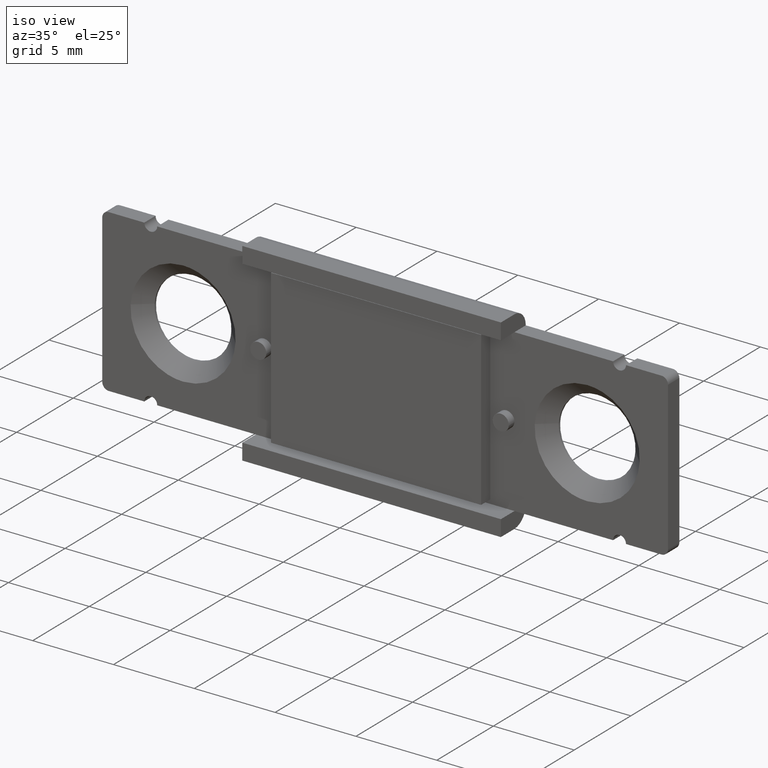
[diagram: clean part render]
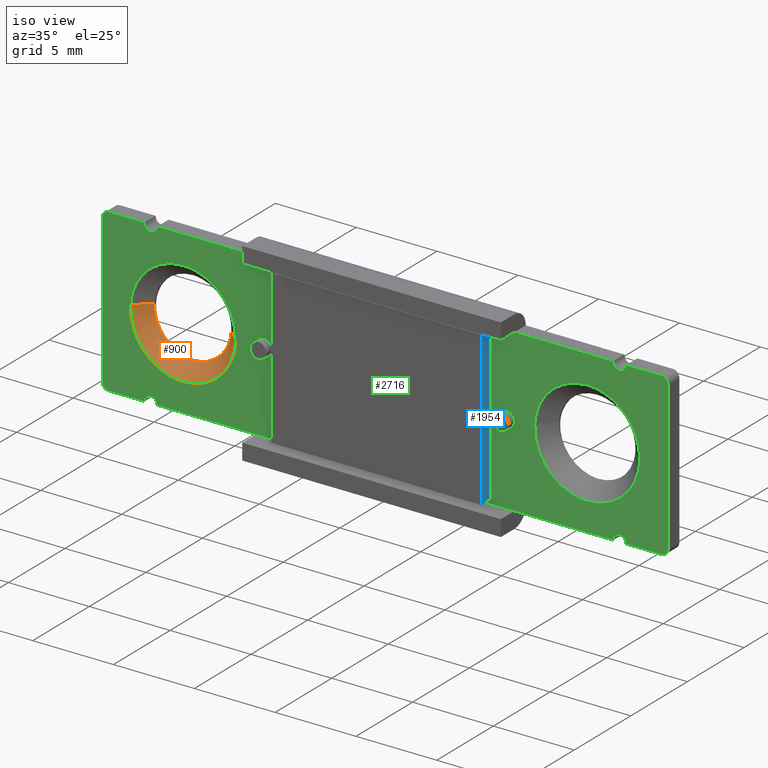
[diagram: same view with three faces highlighted in distinct colors, each labeled with its STEP entity id]
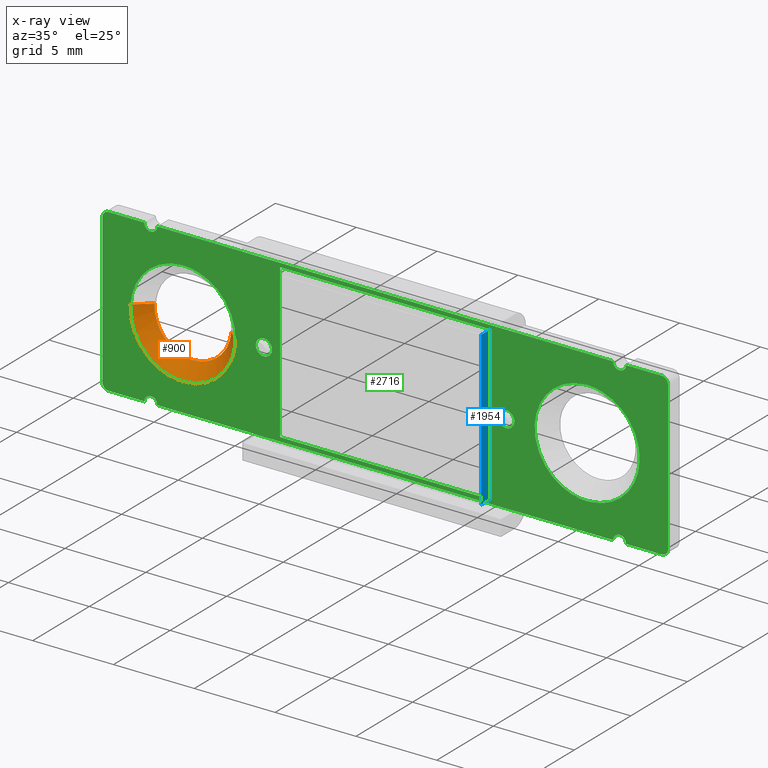
[diagram: x-ray of the same camera — body ghosted, the three highlighted faces saturated]
A machine part, iso view with three faces highlighted in distinct colors.
The next image is the same camera in x-ray (body ghosted, the three faces saturated) — at least one of them is partly hidden behind the body in this view.
Their STEP definitions:

[orange] entity #900 — the highlighted face is a freeform B-spline surface patch.
#617=CARTESIAN_POINT('',(-10.129429353745820,-0.125000000007742,-0.144990281424830));
#618=VERTEX_POINT('',#617);
#641=CARTESIAN_POINT('',(-14.870569646253820,-0.125000000007742,0.144990281424830));
#642=VERTEX_POINT('',#641);
#746=CARTESIAN_POINT('',(-12.499999499999820,-0.125000000000014,-2.375000000000000));
#747=VERTEX_POINT('',#746);
#748=CARTESIAN_POINT('',(-14.870569646253815,-0.125000000007741,0.144990281424830));
#749=CARTESIAN_POINT('',(-14.874999500005382,-0.125000000007630,0.072562812834884));
#750=CARTESIAN_POINT('',(-14.874999500005300,-0.125000000007512,-2.821161E-011));
#751=CARTESIAN_POINT('',(-14.874999500002483,-0.125000000003649,-2.375000000013675));
#752=CARTESIAN_POINT('',(-12.499999499999820,-0.125000000000014,-2.375000000000000));
#760=(BOUNDED_CURVE()B_SPLINE_CURVE(2,(#748,#749,#750,#751,#752),.UNSPECIFIED.,.F.,.U.)B_SPLINE_CURVE_WITH_KNOTS((3,2,3),(0.739332962237702,0.750000000000000,1.0),.UNSPECIFIED.)CURVE()GEOMETRIC_REPRESENTATION_ITEM()RATIONAL_B_SPLINE_CURVE((0.976072041664057,0.987502787898383,1.0,0.707106781186548,1.0))REPRESENTATION_ITEM(''));
#761=EDGE_CURVE('',#642,#747,#760,.T.);
#763=CARTESIAN_POINT('',(-12.499999499999820,-0.125000000000014,-2.375000000000000));
#764=CARTESIAN_POINT('',(-10.265822591151318,-0.125000000003878,-2.374999999985463));
#765=CARTESIAN_POINT('',(-10.129429353745824,-0.125000000007742,-0.144990281424830));
#773=(BOUNDED_CURVE()B_SPLINE_CURVE(2,(#763,#764,#765),.UNSPECIFIED.,.F.,.U.)B_SPLINE_CURVE_WITH_KNOTS((3,3),(0.0,0.239332962237702),.UNSPECIFIED.)CURVE()GEOMETRIC_REPRESENTATION_ITEM()RATIONAL_B_SPLINE_CURVE((1.0,0.719603993288164,0.976072041664057))REPRESENTATION_ITEM(''));
#774=EDGE_CURVE('',#747,#618,#773,.T.);
#798=CARTESIAN_POINT('',(-9.256061405124928,-1.000000000007108,-0.198407753541916));
#799=VERTEX_POINT('',#798);
#800=CARTESIAN_POINT('',(-10.129429353745820,-0.125000000007742,-0.144990281424830));
#801=CARTESIAN_POINT('',(-9.256061405124928,-1.000000000007108,-0.198407753541916));
#802=QUASI_UNIFORM_CURVE('',1,(#800,#801),.UNSPECIFIED.,.F.,.U.);
#803=EDGE_CURVE('',#618,#799,#802,.T.);
#822=CARTESIAN_POINT('',(-15.743937594874710,-1.000000000007108,0.198407753541916));
#823=VERTEX_POINT('',#822);
#837=CARTESIAN_POINT('',(-14.870569646253820,-0.125000000007742,0.144990281424830));
#838=CARTESIAN_POINT('',(-15.743937594874710,-1.000000000007108,0.198407753541916));
#839=QUASI_UNIFORM_CURVE('',1,(#837,#838),.UNSPECIFIED.,.F.,.U.);
#840=EDGE_CURVE('',#642,#823,#839,.T.);
#846=CARTESIAN_POINT('',(-14.848735447536271,-0.103125000000014,0.143654844592960));
#847=CARTESIAN_POINT('',(-14.992390292129240,-0.103125000000014,-2.205081102943495));
#848=CARTESIAN_POINT('',(-12.643654344592781,-0.103125000000014,-2.348735947536455));
#849=CARTESIAN_POINT('',(-10.294918397056326,-0.103125000000014,-2.492390792129414));
#850=CARTESIAN_POINT('',(-10.151263552463369,-0.103125000000014,-0.143654844592960));
#851=CARTESIAN_POINT('',(-15.766317648554249,-1.022421875000015,0.199776576210668));
#852=CARTESIAN_POINT('',(-15.966094224764921,-1.022421875000015,-3.066541572343765));
#853=CARTESIAN_POINT('',(-12.699776076210490,-1.022421875000015,-3.266318148554433));
#854=CARTESIAN_POINT('',(-9.433457927656056,-1.022421875000015,-3.466094724765101));
#855=CARTESIAN_POINT('',(-9.233681351445387,-1.022421875000015,-0.199776576210668));
#863=(BOUNDED_SURFACE()B_SPLINE_SURFACE(2,1,((#846,#851),(#847,#852),(#848,#853),(#849,#854),(#850,#855)),.UNSPECIFIED.,.F.,.F.,.U.)B_SPLINE_SURFACE_WITH_KNOTS((3,2,3),(2,2),(0.0,5.421926089725573,10.843852179451151),(0.0,1.0),.UNSPECIFIED.)GEOMETRIC_REPRESENTATION_ITEM()RATIONAL_B_SPLINE_SURFACE(((1.0,1.0),(0.707106781186548,0.707106781186548),(1.0,1.0),(0.707106781186548,0.707106781186548),(1.0,1.0)))REPRESENTATION_ITEM('')SURFACE());
#864=ORIENTED_EDGE('',*,*,#774,.F.);
#865=ORIENTED_EDGE('',*,*,#761,.F.);
#866=ORIENTED_EDGE('',*,*,#840,.T.);
#867=CARTESIAN_POINT('',(-12.499999499999820,-1.000000000000014,-3.250000000000000));
#868=VERTEX_POINT('',#867);
#869=CARTESIAN_POINT('',(-15.743937594874712,-1.000000000007108,0.198407753541916));
#870=CARTESIAN_POINT('',(-15.749999500006798,-1.000000000007006,0.099296480747514));
#871=CARTESIAN_POINT('',(-15.749999500006689,-1.000000000006897,4.206081E-013));
#872=CARTESIAN_POINT('',(-15.749999500003151,-1.000000000003351,-3.249999999999796));
#873=CARTESIAN_POINT('',(-12.499999499999820,-1.000000000000014,-3.250000000000000));
#881=(BOUNDED_CURVE()B_SPLINE_CURVE(2,(#869,#870,#871,#872,#873),.UNSPECIFIED.,.F.,.U.)B_SPLINE_CURVE_WITH_KNOTS((3,2,3),(0.739332962239139,0.750000000000000,1.0),.UNSPECIFIED.)CURVE()GEOMETRIC_REPRESENTATION_ITEM()RATIONAL_B_SPLINE_CURVE((0.976072041667137,0.987502787900067,1.0,0.707106781186547,1.0))REPRESENTATION_ITEM(''));
#882=EDGE_CURVE('',#823,#868,#881,.T.);
#883=ORIENTED_EDGE('',*,*,#882,.T.);
#884=CARTESIAN_POINT('',(-12.499999499999820,-1.000000000000014,-3.250000000000000));
#885=CARTESIAN_POINT('',(-9.442704782603004,-1.000000000003561,-3.250000000000216));
#886=CARTESIAN_POINT('',(-9.256061405124928,-1.000000000007108,-0.198407753541916));
#894=(BOUNDED_CURVE()B_SPLINE_CURVE(2,(#884,#885,#886),.UNSPECIFIED.,.F.,.U.)B_SPLINE_CURVE_WITH_KNOTS((3,3),(0.0,0.239332962239139),.UNSPECIFIED.)CURVE()GEOMETRIC_REPRESENTATION_ITEM()RATIONAL_B_SPLINE_CURVE((1.0,0.719603993286481,0.976072041667137))REPRESENTATION_ITEM(''));
#895=EDGE_CURVE('',#868,#799,#894,.T.);
#896=ORIENTED_EDGE('',*,*,#895,.T.);
#897=ORIENTED_EDGE('',*,*,#803,.F.);
#898=EDGE_LOOP('',(#864,#865,#866,#883,#896,#897));
#899=FACE_OUTER_BOUND('',#898,.T.);
#900=ADVANCED_FACE('',(#899),#863,.F.);

[blue] entity #1954 — the highlighted face is a freeform B-spline surface patch.
#1836=CARTESIAN_POINT('',(6.500000500000170,-1.800000000000025,-4.749999813229710));
#1837=VERTEX_POINT('',#1836);
#1838=CARTESIAN_POINT('',(6.500000500000170,-1.800000000000025,4.750000186770421));
#1839=VERTEX_POINT('',#1838);
#1840=CARTESIAN_POINT('',(6.500000500000170,-1.800000000000025,-4.749999813229710));
#1841=CARTESIAN_POINT('',(6.500000500000170,-1.800000000000025,4.750000186770421));
#1842=QUASI_UNIFORM_CURVE('',1,(#1840,#1841),.UNSPECIFIED.,.F.,.U.);
#1843=EDGE_CURVE('',#1837,#1839,#1842,.T.);
#1874=CARTESIAN_POINT('',(6.500000500000170,-1.000000000000112,-4.749999813229710));
#1875=VERTEX_POINT('',#1874);
#1881=CARTESIAN_POINT('',(6.500000500000170,-1.800000000000025,-4.749999813229710));
#1882=CARTESIAN_POINT('',(6.500000500000170,-1.000000000000112,-4.749999813229710));
#1883=QUASI_UNIFORM_CURVE('',1,(#1881,#1882),.UNSPECIFIED.,.F.,.U.);
#1884=EDGE_CURVE('',#1837,#1875,#1883,.T.);
#1922=CARTESIAN_POINT('',(6.500000500000170,-1.000000000000112,4.750000186770421));
#1923=VERTEX_POINT('',#1922);
#1931=CARTESIAN_POINT('',(6.500000500000170,-1.800000000000025,4.750000186770421));
#1932=CARTESIAN_POINT('',(6.500000500000170,-1.000000000000112,4.750000186770421));
#1933=QUASI_UNIFORM_CURVE('',1,(#1931,#1932),.UNSPECIFIED.,.F.,.U.);
#1934=EDGE_CURVE('',#1839,#1923,#1933,.T.);
#1939=CARTESIAN_POINT('',(6.500000500000170,-1.839959998449466,-5.224524794816873));
#1940=CARTESIAN_POINT('',(6.500000500000170,-1.839959998449466,5.224525423167441));
#1941=CARTESIAN_POINT('',(6.500000500000170,-0.960039980093000,-5.224524794816873));
#1942=CARTESIAN_POINT('',(6.500000500000170,-0.960039980093000,5.224525423167441));
#1943=B_SPLINE_SURFACE_WITH_KNOTS('',1,1,((#1939,#1941),(#1940,#1942)),.UNSPECIFIED.,.F.,.F.,.U.,(2,2),(2,2),(0.0,10.449050217984320),(0.041708334948495,0.958291687403247),.UNSPECIFIED.);
#1944=CARTESIAN_POINT('',(6.500000500000170,-1.000000000000112,-4.749999813229710));
#1945=CARTESIAN_POINT('',(6.500000500000170,-1.000000000000112,4.750000186770421));
#1946=QUASI_UNIFORM_CURVE('',1,(#1944,#1945),.UNSPECIFIED.,.F.,.U.);
#1947=EDGE_CURVE('',#1875,#1923,#1946,.T.);
#1948=ORIENTED_EDGE('',*,*,#1947,.T.);
#1949=ORIENTED_EDGE('',*,*,#1934,.F.);
#1950=ORIENTED_EDGE('',*,*,#1843,.F.);
#1951=ORIENTED_EDGE('',*,*,#1884,.T.);
#1952=EDGE_LOOP('',(#1948,#1949,#1950,#1951));
#1953=FACE_OUTER_BOUND('',#1952,.T.);
#1954=ADVANCED_FACE('',(#1953),#1943,.F.);

[green] entity #2716 — the highlighted face is a freeform B-spline surface patch.
#494=CARTESIAN_POINT('',(15.743937594874950,-1.000000000007108,-0.198407753541916));
#495=VERTEX_POINT('',#494);
#501=CARTESIAN_POINT('',(12.499999500000060,-1.000000000000014,3.250000000000000));
#502=VERTEX_POINT('',#501);
#503=CARTESIAN_POINT('',(15.743937594874959,-1.000000000007108,-0.198407753541916));
#504=CARTESIAN_POINT('',(15.749999500007041,-1.000000000007006,-0.099296480747514));
#505=CARTESIAN_POINT('',(15.749999500006931,-1.000000000006898,-4.201772E-013));
#506=CARTESIAN_POINT('',(15.749999500003391,-1.000000000003351,3.249999999999798));
#507=CARTESIAN_POINT('',(12.499999500000060,-1.000000000000014,3.250000000000000));
#515=(BOUNDED_CURVE()B_SPLINE_CURVE(2,(#503,#504,#505,#506,#507),.UNSPECIFIED.,.F.,.U.)B_SPLINE_CURVE_WITH_KNOTS((3,2,3),(0.239332962239139,0.250000000000000,0.500000000000000),.UNSPECIFIED.)CURVE()GEOMETRIC_REPRESENTATION_ITEM()RATIONAL_B_SPLINE_CURVE((0.976072041667137,0.987502787900067,1.0,0.707106781186547,1.0))REPRESENTATION_ITEM(''));
#516=EDGE_CURVE('',#495,#502,#515,.T.);
#518=CARTESIAN_POINT('',(9.256061405125166,-1.000000000007108,0.198407753541915));
#519=VERTEX_POINT('',#518);
#520=CARTESIAN_POINT('',(12.499999500000060,-1.000000000000014,3.250000000000000));
#521=CARTESIAN_POINT('',(9.442704782603242,-1.000000000003561,3.250000000000216));
#522=CARTESIAN_POINT('',(9.256061405125166,-1.000000000007108,0.198407753541915));
#530=(BOUNDED_CURVE()B_SPLINE_CURVE(2,(#520,#521,#522),.UNSPECIFIED.,.F.,.U.)B_SPLINE_CURVE_WITH_KNOTS((3,3),(0.500000000000000,0.739332962239139),.UNSPECIFIED.)CURVE()GEOMETRIC_REPRESENTATION_ITEM()RATIONAL_B_SPLINE_CURVE((1.0,0.719603993286481,0.976072041667137))REPRESENTATION_ITEM(''));
#531=EDGE_CURVE('',#502,#519,#530,.T.);
#563=CARTESIAN_POINT('',(12.499999500000060,-1.000000000000014,-3.250000000000000));
#564=VERTEX_POINT('',#563);
#565=CARTESIAN_POINT('',(9.256061405125166,-1.000000000007108,0.198407753541915));
#566=CARTESIAN_POINT('',(9.249999499993082,-1.000000000007006,0.099296480747513));
#567=CARTESIAN_POINT('',(9.249999499993193,-1.000000000006897,4.195038E-013));
#568=CARTESIAN_POINT('',(9.249999499996731,-1.000000000003351,-3.249999999999798));
#569=CARTESIAN_POINT('',(12.499999500000060,-1.000000000000014,-3.250000000000000));
#577=(BOUNDED_CURVE()B_SPLINE_CURVE(2,(#565,#566,#567,#568,#569),.UNSPECIFIED.,.F.,.U.)B_SPLINE_CURVE_WITH_KNOTS((3,2,3),(0.739332962239139,0.750000000000000,1.0),.UNSPECIFIED.)CURVE()GEOMETRIC_REPRESENTATION_ITEM()RATIONAL_B_SPLINE_CURVE((0.976072041667137,0.987502787900067,1.0,0.707106781186547,1.0))REPRESENTATION_ITEM(''));
#578=EDGE_CURVE('',#519,#564,#577,.T.);
#580=CARTESIAN_POINT('',(12.499999500000060,-1.000000000000014,-3.250000000000000));
#581=CARTESIAN_POINT('',(15.557294217396880,-1.000000000003561,-3.250000000000216));
#582=CARTESIAN_POINT('',(15.743937594874959,-1.000000000007108,-0.198407753541916));
#590=(BOUNDED_CURVE()B_SPLINE_CURVE(2,(#580,#581,#582),.UNSPECIFIED.,.F.,.U.)B_SPLINE_CURVE_WITH_KNOTS((3,3),(0.0,0.239332962239139),.UNSPECIFIED.)CURVE()GEOMETRIC_REPRESENTATION_ITEM()RATIONAL_B_SPLINE_CURVE((1.0,0.719603993286481,0.976072041667137))REPRESENTATION_ITEM(''));
#591=EDGE_CURVE('',#564,#495,#590,.T.);
#798=CARTESIAN_POINT('',(-9.256061405124928,-1.000000000007108,-0.198407753541916));
#799=VERTEX_POINT('',#798);
#805=CARTESIAN_POINT('',(-12.499999499999820,-1.000000000000014,3.250000000000000));
#806=VERTEX_POINT('',#805);
#807=CARTESIAN_POINT('',(-9.256061405124928,-1.000000000007108,-0.198407753541916));
#808=CARTESIAN_POINT('',(-9.249999499992844,-1.000000000007006,-0.099296480747514));
#809=CARTESIAN_POINT('',(-9.249999499992953,-1.000000000006897,-4.201772E-013));
#810=CARTESIAN_POINT('',(-9.249999499996493,-1.000000000003351,3.249999999999798));
#811=CARTESIAN_POINT('',(-12.499999499999820,-1.000000000000014,3.250000000000000));
#819=(BOUNDED_CURVE()B_SPLINE_CURVE(2,(#807,#808,#809,#810,#811),.UNSPECIFIED.,.F.,.U.)B_SPLINE_CURVE_WITH_KNOTS((3,2,3),(0.239332962239139,0.250000000000000,0.500000000000000),.UNSPECIFIED.)CURVE()GEOMETRIC_REPRESENTATION_ITEM()RATIONAL_B_SPLINE_CURVE((0.976072041667137,0.987502787900067,1.0,0.707106781186547,1.0))REPRESENTATION_ITEM(''));
#820=EDGE_CURVE('',#799,#806,#819,.T.);
#822=CARTESIAN_POINT('',(-15.743937594874710,-1.000000000007108,0.198407753541916));
#823=VERTEX_POINT('',#822);
#824=CARTESIAN_POINT('',(-12.499999499999820,-1.000000000000014,3.250000000000000));
#825=CARTESIAN_POINT('',(-15.557294217396631,-1.000000000003561,3.250000000000216));
#826=CARTESIAN_POINT('',(-15.743937594874712,-1.000000000007108,0.198407753541916));
#834=(BOUNDED_CURVE()B_SPLINE_CURVE(2,(#824,#825,#826),.UNSPECIFIED.,.F.,.U.)B_SPLINE_CURVE_WITH_KNOTS((3,3),(0.500000000000000,0.739332962239139),.UNSPECIFIED.)CURVE()GEOMETRIC_REPRESENTATION_ITEM()RATIONAL_B_SPLINE_CURVE((1.0,0.719603993286481,0.976072041667137))REPRESENTATION_ITEM(''));
#835=EDGE_CURVE('',#806,#823,#834,.T.);
#867=CARTESIAN_POINT('',(-12.499999499999820,-1.000000000000014,-3.250000000000000));
#868=VERTEX_POINT('',#867);
#869=CARTESIAN_POINT('',(-15.743937594874712,-1.000000000007108,0.198407753541916));
#870=CARTESIAN_POINT('',(-15.749999500006798,-1.000000000007006,0.099296480747514));
#871=CARTESIAN_POINT('',(-15.749999500006689,-1.000000000006897,4.206081E-013));
#872=CARTESIAN_POINT('',(-15.749999500003151,-1.000000000003351,-3.249999999999796));
#873=CARTESIAN_POINT('',(-12.499999499999820,-1.000000000000014,-3.250000000000000));
#881=(BOUNDED_CURVE()B_SPLINE_CURVE(2,(#869,#870,#871,#872,#873),.UNSPECIFIED.,.F.,.U.)B_SPLINE_CURVE_WITH_KNOTS((3,2,3),(0.739332962239139,0.750000000000000,1.0),.UNSPECIFIED.)CURVE()GEOMETRIC_REPRESENTATION_ITEM()RATIONAL_B_SPLINE_CURVE((0.976072041667137,0.987502787900067,1.0,0.707106781186547,1.0))REPRESENTATION_ITEM(''));
#882=EDGE_CURVE('',#823,#868,#881,.T.);
#884=CARTESIAN_POINT('',(-12.499999499999820,-1.000000000000014,-3.250000000000000));
#885=CARTESIAN_POINT('',(-9.442704782603004,-1.000000000003561,-3.250000000000216));
#886=CARTESIAN_POINT('',(-9.256061405124928,-1.000000000007108,-0.198407753541916));
#894=(BOUNDED_CURVE()B_SPLINE_CURVE(2,(#884,#885,#886),.UNSPECIFIED.,.F.,.U.)B_SPLINE_CURVE_WITH_KNOTS((3,3),(0.0,0.239332962239139),.UNSPECIFIED.)CURVE()GEOMETRIC_REPRESENTATION_ITEM()RATIONAL_B_SPLINE_CURVE((1.0,0.719603993286481,0.976072041667137))REPRESENTATION_ITEM(''));
#895=EDGE_CURVE('',#868,#799,#894,.T.);
#1165=CARTESIAN_POINT('',(-7.998458666841378,-1.000000000000112,0.039229548183942));
#1166=VERTEX_POINT('',#1165);
#1172=CARTESIAN_POINT('',(-7.500000000000000,-1.000000000000112,-0.500000000000000));
#1173=VERTEX_POINT('',#1172);
#1174=CARTESIAN_POINT('',(-7.998458666841378,-1.000000000000112,0.039229548183941));
#1175=CARTESIAN_POINT('',(-8.0,-1.000000000000112,0.019645053664587));
#1176=CARTESIAN_POINT('',(-8.0,-1.000000000000112,0.0));
#1177=CARTESIAN_POINT('',(-8.0,-1.000000000000112,-0.500000000000000));
#1178=CARTESIAN_POINT('',(-7.500000000000000,-1.000000000000112,-0.500000000000000));
#1186=(BOUNDED_CURVE()B_SPLINE_CURVE(2,(#1174,#1175,#1176,#1177,#1178),.UNSPECIFIED.,.F.,.U.)B_SPLINE_CURVE_WITH_KNOTS((3,2,3),(0.736331300522709,0.750000000000000,1.0),.UNSPECIFIED.)CURVE()GEOMETRIC_REPRESENTATION_ITEM()RATIONAL_B_SPLINE_CURVE((0.969723355942134,0.983986122452410,1.0,0.707106781186548,1.0))REPRESENTATION_ITEM(''));
#1187=EDGE_CURVE('',#1166,#1173,#1186,.T.);
#1189=CARTESIAN_POINT('',(-7.001541333158621,-1.000000000000112,-0.039229548183942));
#1190=VERTEX_POINT('',#1189);
#1191=CARTESIAN_POINT('',(-7.500000000000000,-1.000000000000112,-0.500000000000000));
#1192=CARTESIAN_POINT('',(-7.037804754468549,-1.000000000000112,-0.500000000000000));
#1193=CARTESIAN_POINT('',(-7.001541333158621,-1.000000000000112,-0.039229548183942));
#1201=(BOUNDED_CURVE()B_SPLINE_CURVE(2,(#1191,#1192,#1193),.UNSPECIFIED.,.F.,.U.)B_SPLINE_CURVE_WITH_KNOTS((3,3),(0.0,0.236331300522709),.UNSPECIFIED.)CURVE()GEOMETRIC_REPRESENTATION_ITEM()RATIONAL_B_SPLINE_CURVE((1.0,0.723120658734137,0.969723355942134))REPRESENTATION_ITEM(''));
#1202=EDGE_CURVE('',#1173,#1190,#1201,.T.);
#1232=CARTESIAN_POINT('',(-7.500000000000000,-1.000000000000112,0.500000000000000));
#1233=VERTEX_POINT('',#1232);
#1234=CARTESIAN_POINT('',(-7.001541333158621,-1.000000000000112,-0.039229548183942));
#1235=CARTESIAN_POINT('',(-6.999999999999999,-1.000000000000112,-0.019645053664587));
#1236=CARTESIAN_POINT('',(-6.999999999999999,-1.000000000000112,0.0));
#1237=CARTESIAN_POINT('',(-6.999999999999999,-1.000000000000112,0.500000000000000));
#1238=CARTESIAN_POINT('',(-7.500000000000000,-1.000000000000112,0.500000000000000));
#1246=(BOUNDED_CURVE()B_SPLINE_CURVE(2,(#1234,#1235,#1236,#1237,#1238),.UNSPECIFIED.,.F.,.U.)B_SPLINE_CURVE_WITH_KNOTS((3,2,3),(0.236331300522709,0.250000000000000,0.500000000000000),.UNSPECIFIED.)CURVE()GEOMETRIC_REPRESENTATION_ITEM()RATIONAL_B_SPLINE_CURVE((0.969723355942134,0.983986122452410,1.0,0.707106781186548,1.0))REPRESENTATION_ITEM(''));
#1247=EDGE_CURVE('',#1190,#1233,#1246,.T.);
#1249=CARTESIAN_POINT('',(-7.500000000000000,-1.000000000000112,0.500000000000000));
#1250=CARTESIAN_POINT('',(-7.962195245531448,-1.000000000000112,0.500000000000000));
#1251=CARTESIAN_POINT('',(-7.998458666841378,-1.000000000000112,0.039229548183941));
#1259=(BOUNDED_CURVE()B_SPLINE_CURVE(2,(#1249,#1250,#1251),.UNSPECIFIED.,.F.,.U.)B_SPLINE_CURVE_WITH_KNOTS((3,3),(0.500000000000000,0.736331300522709),.UNSPECIFIED.)CURVE()GEOMETRIC_REPRESENTATION_ITEM()RATIONAL_B_SPLINE_CURVE((1.0,0.723120658734137,0.969723355942134))REPRESENTATION_ITEM(''));
#1260=EDGE_CURVE('',#1233,#1166,#1259,.T.);
#1287=CARTESIAN_POINT('',(7.001541833158793,-1.000000000000112,0.039229548183942));
#1288=VERTEX_POINT('',#1287);
#1294=CARTESIAN_POINT('',(7.500000500000170,-1.000000000000112,-0.500000000000000));
#1295=VERTEX_POINT('',#1294);
#1296=CARTESIAN_POINT('',(7.001541833158793,-1.000000000000112,0.039229548183942));
#1297=CARTESIAN_POINT('',(7.000000500000171,-1.000000000000112,0.019645053664587));
#1298=CARTESIAN_POINT('',(7.000000500000171,-1.000000000000112,0.0));
#1299=CARTESIAN_POINT('',(7.000000500000172,-1.000000000000112,-0.500000000000000));
#1300=CARTESIAN_POINT('',(7.500000500000170,-1.000000000000112,-0.500000000000000));
#1308=(BOUNDED_CURVE()B_SPLINE_CURVE(2,(#1296,#1297,#1298,#1299,#1300),.UNSPECIFIED.,.F.,.U.)B_SPLINE_CURVE_WITH_KNOTS((3,2,3),(0.736331300522709,0.750000000000000,1.0),.UNSPECIFIED.)CURVE()GEOMETRIC_REPRESENTATION_ITEM()RATIONAL_B_SPLINE_CURVE((0.969723355942134,0.983986122452410,1.0,0.707106781186548,1.0))REPRESENTATION_ITEM(''));
#1309=EDGE_CURVE('',#1288,#1295,#1308,.T.);
#1311=CARTESIAN_POINT('',(7.998459166841547,-1.000000000000112,-0.039229548183942));
#1312=VERTEX_POINT('',#1311);
#1313=CARTESIAN_POINT('',(7.500000500000170,-1.000000000000112,-0.500000000000000));
#1314=CARTESIAN_POINT('',(7.962195745531619,-1.000000000000112,-0.500000000000000));
#1315=CARTESIAN_POINT('',(7.998459166841547,-1.000000000000112,-0.039229548183942));
#1323=(BOUNDED_CURVE()B_SPLINE_CURVE(2,(#1313,#1314,#1315),.UNSPECIFIED.,.F.,.U.)B_SPLINE_CURVE_WITH_KNOTS((3,3),(0.0,0.236331300522709),.UNSPECIFIED.)CURVE()GEOMETRIC_REPRESENTATION_ITEM()RATIONAL_B_SPLINE_CURVE((1.0,0.723120658734137,0.969723355942134))REPRESENTATION_ITEM(''));
#1324=EDGE_CURVE('',#1295,#1312,#1323,.T.);
#1354=CARTESIAN_POINT('',(7.500000500000170,-1.000000000000112,0.500000000000000));
#1355=VERTEX_POINT('',#1354);
#1356=CARTESIAN_POINT('',(7.998459166841547,-1.000000000000112,-0.039229548183942));
#1357=CARTESIAN_POINT('',(8.000000500000169,-1.000000000000112,-0.019645053664587));
#1358=CARTESIAN_POINT('',(8.000000500000169,-1.000000000000112,0.0));
#1359=CARTESIAN_POINT('',(8.000000500000169,-1.000000000000112,0.500000000000000));
#1360=CARTESIAN_POINT('',(7.500000500000170,-1.000000000000112,0.500000000000000));
#1368=(BOUNDED_CURVE()B_SPLINE_CURVE(2,(#1356,#1357,#1358,#1359,#1360),.UNSPECIFIED.,.F.,.U.)B_SPLINE_CURVE_WITH_KNOTS((3,2,3),(0.236331300522709,0.250000000000000,0.500000000000000),.UNSPECIFIED.)CURVE()GEOMETRIC_REPRESENTATION_ITEM()RATIONAL_B_SPLINE_CURVE((0.969723355942134,0.983986122452410,1.0,0.707106781186548,1.0))REPRESENTATION_ITEM(''));
#1369=EDGE_CURVE('',#1312,#1355,#1368,.T.);
#1371=CARTESIAN_POINT('',(7.500000500000170,-1.000000000000112,0.500000000000000));
#1372=CARTESIAN_POINT('',(7.037805254468722,-1.000000000000112,0.500000000000000));
#1373=CARTESIAN_POINT('',(7.001541833158793,-1.000000000000112,0.039229548183942));
#1381=(BOUNDED_CURVE()B_SPLINE_CURVE(2,(#1371,#1372,#1373),.UNSPECIFIED.,.F.,.U.)B_SPLINE_CURVE_WITH_KNOTS((3,3),(0.500000000000000,0.736331300522709),.UNSPECIFIED.)CURVE()GEOMETRIC_REPRESENTATION_ITEM()RATIONAL_B_SPLINE_CURVE((1.0,0.723120658734137,0.969723355942134))REPRESENTATION_ITEM(''));
#1382=EDGE_CURVE('',#1355,#1288,#1381,.T.);
#1872=CARTESIAN_POINT('',(-6.500000000000000,-1.000000000000014,-4.750004669259821));
#1873=VERTEX_POINT('',#1872);
#1874=CARTESIAN_POINT('',(6.500000500000170,-1.000000000000112,-4.749999813229710));
#1875=VERTEX_POINT('',#1874);
#1876=CARTESIAN_POINT('',(-6.500000000000000,-1.000000000000014,-4.750004669259821));
#1877=CARTESIAN_POINT('',(6.500000500000170,-1.000000000000112,-4.749999813229710));
#1878=QUASI_UNIFORM_CURVE('',1,(#1876,#1877),.UNSPECIFIED.,.F.,.U.);
#1879=EDGE_CURVE('',#1873,#1875,#1878,.T.);
#1900=CARTESIAN_POINT('',(-6.500000000000000,-1.000000000000112,4.749995330739450));
#1901=VERTEX_POINT('',#1900);
#1902=CARTESIAN_POINT('',(-6.500000000000000,-1.000000000000112,4.749995330739450));
#1903=CARTESIAN_POINT('',(-6.500000000000000,-1.000000000000014,-4.750004669259821));
#1904=QUASI_UNIFORM_CURVE('',1,(#1902,#1903),.UNSPECIFIED.,.F.,.U.);
#1905=EDGE_CURVE('',#1901,#1873,#1904,.T.);
#1922=CARTESIAN_POINT('',(6.500000500000170,-1.000000000000112,4.750000186770421));
#1923=VERTEX_POINT('',#1922);
#1924=CARTESIAN_POINT('',(6.500000500000170,-1.000000000000112,4.750000186770421));
#1925=CARTESIAN_POINT('',(-6.500000000000000,-1.000000000000112,4.749995330739450));
#1926=QUASI_UNIFORM_CURVE('',1,(#1924,#1925),.UNSPECIFIED.,.F.,.U.);
#1927=EDGE_CURVE('',#1923,#1901,#1926,.T.);
#1944=CARTESIAN_POINT('',(6.500000500000170,-1.000000000000112,-4.749999813229710));
#1945=CARTESIAN_POINT('',(6.500000500000170,-1.000000000000112,4.750000186770421));
#1946=QUASI_UNIFORM_CURVE('',1,(#1944,#1945),.UNSPECIFIED.,.F.,.U.);
#1947=EDGE_CURVE('',#1875,#1923,#1946,.T.);
#1961=CARTESIAN_POINT('',(-8.0,-1.0,5.0));
#1962=VERTEX_POINT('',#1961);
#1986=CARTESIAN_POINT('',(8.0,-1.0,5.0));
#1987=VERTEX_POINT('',#1986);
#2006=CARTESIAN_POINT('',(8.0,-1.0,5.0));
#2007=CARTESIAN_POINT('',(-8.0,-1.0,5.0));
#2008=QUASI_UNIFORM_CURVE('',1,(#2006,#2007),.UNSPECIFIED.,.F.,.U.);
#2009=EDGE_CURVE('',#1987,#1962,#2008,.T.);
#2024=CARTESIAN_POINT('',(-8.0,-1.0,-5.0));
#2025=VERTEX_POINT('',#2024);
#2053=CARTESIAN_POINT('',(8.0,-1.0,-5.0));
#2054=VERTEX_POINT('',#2053);
#2097=CARTESIAN_POINT('',(8.0,-1.0,-5.0));
#2098=CARTESIAN_POINT('',(-8.0,-1.0,-5.0));
#2099=QUASI_UNIFORM_CURVE('',1,(#2097,#2098),.UNSPECIFIED.,.F.,.U.);
#2100=EDGE_CURVE('',#2054,#2025,#2099,.T.);
#2126=CARTESIAN_POINT('',(14.099999499999861,-1.0,5.0));
#2127=VERTEX_POINT('',#2126);
#2133=CARTESIAN_POINT('',(14.899999499999920,-1.0,5.0));
#2134=VERTEX_POINT('',#2133);
#2135=CARTESIAN_POINT('',(14.099999499999861,-1.0,5.0));
#2136=CARTESIAN_POINT('',(14.099939401596030,-1.0,4.947631773520337));
#2137=CARTESIAN_POINT('',(14.117611577564890,-1.000000000000001,4.859322873104788));
#2138=CARTESIAN_POINT('',(14.175818070300309,-0.999999999999997,4.759461491652614));
#2139=CARTESIAN_POINT('',(14.246115793987681,-0.999999999999999,4.685627496882776));
#2140=CARTESIAN_POINT('',(14.335551082421640,-1.000000000000006,4.628979318588279));
#2141=CARTESIAN_POINT('',(14.456710236694210,-0.999999999999993,4.595447454051128));
#2142=CARTESIAN_POINT('',(14.572792187769030,-1.000000000000006,4.601155335868786));
#2143=CARTESIAN_POINT('',(14.681759286160890,-0.999999999999998,4.638657113683695));
#2144=CARTESIAN_POINT('',(14.764280601533651,-0.999999999999982,4.693788954389351));
#2145=CARTESIAN_POINT('',(14.836256000375229,-1.000000000000004,4.775195690189325));
#2146=CARTESIAN_POINT('',(14.886829568857840,-0.999999999999997,4.875657868098879));
#2147=CARTESIAN_POINT('',(14.900021017189760,-1.000000000000001,4.957457845666903));
#2148=CARTESIAN_POINT('',(14.899999499999920,-1.0,5.0));
#2149=B_SPLINE_CURVE_WITH_KNOTS('',3,(#2135,#2136,#2137,#2138,#2139,#2140,#2141,#2142,#2143,#2144,#2145,#2146,#2147,#2148),.UNSPECIFIED.,.F.,.U.,(4,1,1,1,1,1,1,1,1,1,1,4),(0.000000234966585,0.157077718809714,0.265079467355936,0.343622215354618,0.461448521991783,0.579268636988617,0.716684238127753,0.805049432190502,0.922865424099063,1.011228879087085,1.129045530067040,1.256668595682362),.UNSPECIFIED.);
#2150=EDGE_CURVE('',#2127,#2134,#2149,.T.);
#2167=CARTESIAN_POINT('',(17.099999500000202,-1.0,5.0));
#2168=VERTEX_POINT('',#2167);
#2169=CARTESIAN_POINT('',(17.099999500000202,-1.0,5.0));
#2170=CARTESIAN_POINT('',(14.899999499999920,-1.0,5.0));
#2171=QUASI_UNIFORM_CURVE('',1,(#2169,#2170),.UNSPECIFIED.,.F.,.U.);
#2172=EDGE_CURVE('',#2168,#2134,#2171,.T.);
#2198=CARTESIAN_POINT('',(17.499999500000101,-1.0,4.600000000000000));
#2199=VERTEX_POINT('',#2198);
#2200=CARTESIAN_POINT('',(17.499999500000101,-1.0,4.600000000000000));
#2201=CARTESIAN_POINT('',(17.499999500000186,-1.0,4.999999999999979));
#2202=CARTESIAN_POINT('',(17.099999500000202,-1.0,4.999999999999978));
#2210=(BOUNDED_CURVE()B_SPLINE_CURVE(2,(#2200,#2201,#2202),.UNSPECIFIED.,.F.,.U.)CURVE()GEOMETRIC_REPRESENTATION_ITEM()QUASI_UNIFORM_CURVE()RATIONAL_B_SPLINE_CURVE((1.0,0.707106781186547,1.0))REPRESENTATION_ITEM(''));
#2211=EDGE_CURVE('',#2199,#2168,#2210,.T.);
#2228=CARTESIAN_POINT('',(17.499999500000101,-1.0,-4.600000000000080));
#2229=VERTEX_POINT('',#2228);
#2230=CARTESIAN_POINT('',(17.499999500000101,-1.0,-4.600000000000080));
#2231=CARTESIAN_POINT('',(17.499999500000101,-1.0,4.600000000000000));
#2232=QUASI_UNIFORM_CURVE('',1,(#2230,#2231),.UNSPECIFIED.,.F.,.U.);
#2233=EDGE_CURVE('',#2229,#2199,#2232,.T.);
#2259=CARTESIAN_POINT('',(17.099999500000202,-1.0,-5.0));
#2260=VERTEX_POINT('',#2259);
#2261=CARTESIAN_POINT('',(17.099999500000202,-1.0,-5.0));
#2262=CARTESIAN_POINT('',(17.499999500000126,-1.0,-4.999999999999999));
#2263=CARTESIAN_POINT('',(17.499999500000119,-1.0,-4.600000000000080));
#2271=(BOUNDED_CURVE()B_SPLINE_CURVE(2,(#2261,#2262,#2263),.UNSPECIFIED.,.F.,.U.)CURVE()GEOMETRIC_REPRESENTATION_ITEM()QUASI_UNIFORM_CURVE()RATIONAL_B_SPLINE_CURVE((1.0,0.707106781186547,1.0))REPRESENTATION_ITEM(''));
#2272=EDGE_CURVE('',#2260,#2229,#2271,.T.);
#2289=CARTESIAN_POINT('',(14.899999499999799,-1.0,-5.0));
#2290=VERTEX_POINT('',#2289);
#2291=CARTESIAN_POINT('',(14.899999499999799,-1.0,-5.0));
#2292=CARTESIAN_POINT('',(17.099999500000202,-1.0,-5.0));
#2293=QUASI_UNIFORM_CURVE('',1,(#2291,#2292),.UNSPECIFIED.,.F.,.U.);
#2294=EDGE_CURVE('',#2290,#2260,#2293,.T.);
#2324=CARTESIAN_POINT('',(14.099999499999740,-1.0,-5.0));
#2325=VERTEX_POINT('',#2324);
#2326=CARTESIAN_POINT('',(14.899999499999799,-1.0,-5.0));
#2327=CARTESIAN_POINT('',(14.900043862666910,-0.999999999999999,-4.950910287568547));
#2328=CARTESIAN_POINT('',(14.885352538825691,-1.0,-4.872406669983277));
#2329=CARTESIAN_POINT('',(14.835305814616270,-0.999999999999999,-4.775961304120926));
#2330=CARTESIAN_POINT('',(14.775950340700669,-1.000000000000001,-4.705411962387084));
#2331=CARTESIAN_POINT('',(14.704440895763179,-0.999999999999998,-4.652381937343873));
#2332=CARTESIAN_POINT('',(14.620262250586681,-1.000000000000005,-4.615070375520525));
#2333=CARTESIAN_POINT('',(14.523252302649871,-0.999999999999990,-4.595763977684815));
#2334=CARTESIAN_POINT('',(14.407782290628941,-1.000000000000003,-4.604266452009725));
#2335=CARTESIAN_POINT('',(14.300079332634620,-0.999999999999998,-4.647345866031126));
#2336=CARTESIAN_POINT('',(14.219503687108160,-1.000000000000008,-4.710247701912979));
#2337=CARTESIAN_POINT('',(14.163177432911191,-0.999999999999986,-4.778886871742651));
#2338=CARTESIAN_POINT('',(14.114642768292210,-1.000000000000013,-4.872406974357335));
#2339=CARTESIAN_POINT('',(14.099958238043820,-0.999999999999995,-4.950910966495162));
#2340=CARTESIAN_POINT('',(14.099999499999740,-1.0,-5.0));
#2341=B_SPLINE_CURVE_WITH_KNOTS('',3,(#2326,#2327,#2328,#2329,#2330,#2331,#2332,#2333,#2334,#2335,#2336,#2337,#2338,#2339,#2340),.UNSPECIFIED.,.F.,.U.,(4,1,1,1,1,1,1,1,1,1,1,1,4),(0.000000234969537,0.147250106099540,0.235623184620121,0.323986844793908,0.422165795035527,0.500710799373175,0.598893493965211,0.716684238128362,0.844315674425927,0.942502418488307,1.021050145044977,1.109418291883568,1.256668595682363),.UNSPECIFIED.);
#2342=EDGE_CURVE('',#2290,#2325,#2341,.T.);
#2357=CARTESIAN_POINT('',(8.0,-1.0,-5.0));
#2358=CARTESIAN_POINT('',(14.099999499999740,-1.0,-5.0));
#2359=QUASI_UNIFORM_CURVE('',1,(#2357,#2358),.UNSPECIFIED.,.F.,.U.);
#2360=EDGE_CURVE('',#2054,#2325,#2359,.T.);
#2387=CARTESIAN_POINT('',(-14.099999499999740,-1.0,-5.0));
#2388=VERTEX_POINT('',#2387);
#2394=CARTESIAN_POINT('',(-14.899999499999920,-1.0,-5.0));
#2395=VERTEX_POINT('',#2394);
#2396=CARTESIAN_POINT('',(-14.099999499999740,-1.0,-5.0));
#2397=CARTESIAN_POINT('',(-14.099954192727420,-0.999999999999998,-4.950910900460069));
#2398=CARTESIAN_POINT('',(-14.114649088957730,-1.000000000000001,-4.872407869350376));
#2399=CARTESIAN_POINT('',(-14.172258932815391,-1.000000000000000,-4.761333003173869));
#2400=CARTESIAN_POINT('',(-14.250116173672280,-1.000000000000001,-4.679552950005166));
#2401=CARTESIAN_POINT('',(-14.368742975751260,-0.999999999999998,-4.614248165955808));
#2402=CARTESIAN_POINT('',(-14.500198127186939,-1.000000000000007,-4.591420081613778));
#2403=CARTESIAN_POINT('',(-14.620747682395169,-0.999999999999998,-4.613912254658008));
#2404=CARTESIAN_POINT('',(-14.721834575940679,-1.0,-4.661710547800005));
#2405=CARTESIAN_POINT('',(-14.810617872715470,-1.0,-4.736383505680506));
#2406=CARTESIAN_POINT('',(-14.882312451478111,-1.0,-4.856042345713567));
#2407=CARTESIAN_POINT('',(-14.900041982842460,-1.0,-4.950911219216025));
#2408=CARTESIAN_POINT('',(-14.899999499999920,-1.0,-5.0));
#2409=B_SPLINE_CURVE_WITH_KNOTS('',3,(#2396,#2397,#2398,#2399,#2400,#2401,#2402,#2403,#2404,#2405,#2406,#2407,#2408),.UNSPECIFIED.,.F.,.U.,(4,1,1,1,1,1,1,1,1,1,4),(0.000000234965693,0.147250106096589,0.235623184617676,0.373078323452026,0.481080620290029,0.638132723179804,0.765767176693371,0.844315674426150,0.971958488066293,1.109418291883928,1.256668595682720),.UNSPECIFIED.);
#2410=EDGE_CURVE('',#2388,#2395,#2409,.T.);
#2427=CARTESIAN_POINT('',(-17.099999499999999,-1.0,-5.000000000000110));
#2428=VERTEX_POINT('',#2427);
#2429=CARTESIAN_POINT('',(-17.099999499999999,-1.0,-5.000000000000110));
#2430=CARTESIAN_POINT('',(-14.899999499999920,-1.0,-5.0));
#2431=QUASI_UNIFORM_CURVE('',1,(#2429,#2430),.UNSPECIFIED.,.F.,.U.);
#2432=EDGE_CURVE('',#2428,#2395,#2431,.T.);
#2458=CARTESIAN_POINT('',(-17.499999499999848,-1.0,-4.600000000000080));
#2459=VERTEX_POINT('',#2458);
#2460=CARTESIAN_POINT('',(-17.499999499999848,-1.0,-4.600000000000080));
#2461=CARTESIAN_POINT('',(-17.499999500000040,-1.0,-5.000000000000115));
#2462=CARTESIAN_POINT('',(-17.099999499999999,-1.0,-5.000000000000114));
#2470=(BOUNDED_CURVE()B_SPLINE_CURVE(2,(#2460,#2461,#2462),.UNSPECIFIED.,.F.,.U.)CURVE()GEOMETRIC_REPRESENTATION_ITEM()QUASI_UNIFORM_CURVE()RATIONAL_B_SPLINE_CURVE((1.0,0.707106781186547,1.0))REPRESENTATION_ITEM(''));
#2471=EDGE_CURVE('',#2459,#2428,#2470,.T.);
#2488=CARTESIAN_POINT('',(-17.499999500000001,-1.0,4.600000000000000));
#2489=VERTEX_POINT('',#2488);
#2490=CARTESIAN_POINT('',(-17.499999500000001,-1.0,4.600000000000000));
#2491=CARTESIAN_POINT('',(-17.499999499999848,-1.0,-4.600000000000080));
#2492=QUASI_UNIFORM_CURVE('',1,(#2490,#2491),.UNSPECIFIED.,.F.,.U.);
#2493=EDGE_CURVE('',#2489,#2459,#2492,.T.);
#2519=CARTESIAN_POINT('',(-17.099999499999999,-1.0,5.0));
#2520=VERTEX_POINT('',#2519);
#2521=CARTESIAN_POINT('',(-17.099999499999999,-1.0,5.000000000000034));
#2522=CARTESIAN_POINT('',(-17.499999500000040,-1.0,5.000000000000033));
#2523=CARTESIAN_POINT('',(-17.499999500000040,-1.0,4.600000000000000));
#2531=(BOUNDED_CURVE()B_SPLINE_CURVE(2,(#2521,#2522,#2523),.UNSPECIFIED.,.F.,.U.)CURVE()GEOMETRIC_REPRESENTATION_ITEM()QUASI_UNIFORM_CURVE()RATIONAL_B_SPLINE_CURVE((1.0,0.707106781186547,1.0))REPRESENTATION_ITEM(''));
#2532=EDGE_CURVE('',#2520,#2489,#2531,.T.);
#2549=CARTESIAN_POINT('',(-14.899999499999799,-1.0,5.0));
#2550=VERTEX_POINT('',#2549);
#2551=CARTESIAN_POINT('',(-14.899999499999799,-1.0,5.0));
#2552=CARTESIAN_POINT('',(-17.099999499999999,-1.0,5.0));
#2553=QUASI_UNIFORM_CURVE('',1,(#2551,#2552),.UNSPECIFIED.,.F.,.U.);
#2554=EDGE_CURVE('',#2550,#2520,#2553,.T.);
#2584=CARTESIAN_POINT('',(-14.099999499999861,-1.0,5.0));
#2585=VERTEX_POINT('',#2584);
#2586=CARTESIAN_POINT('',(-14.899999499999799,-1.0,5.0));
#2587=CARTESIAN_POINT('',(-14.900008034577450,-0.999999999999999,4.964003334600077));
#2588=CARTESIAN_POINT('',(-14.889337092380710,-1.000000000000003,4.885463875384861));
#2589=CARTESIAN_POINT('',(-14.843801893285550,-0.999999999999998,4.786027694491748));
#2590=CARTESIAN_POINT('',(-14.767472814783590,-1.0,4.695321534973623));
#2591=CARTESIAN_POINT('',(-14.670834011536030,-1.000000000000005,4.630726351885305));
#2592=CARTESIAN_POINT('',(-14.562419457778020,-0.999999999999996,4.600765113819461));
#2593=CARTESIAN_POINT('',(-14.460520537655530,-1.000000000000002,4.598264427384658));
#2594=CARTESIAN_POINT('',(-14.370068939455740,-1.000000000000000,4.617411708485749));
#2595=CARTESIAN_POINT('',(-14.269445404184649,-1.000000000000000,4.666500957269784));
#2596=CARTESIAN_POINT('',(-14.190706376628240,-1.0,4.737867417667527));
#2597=CARTESIAN_POINT('',(-14.119878179085140,-1.0,4.852817088069310));
#2598=CARTESIAN_POINT('',(-14.099919337310590,-1.0,4.941080116313516));
#2599=CARTESIAN_POINT('',(-14.099999499999861,-1.0,5.0));
#2600=B_SPLINE_CURVE_WITH_KNOTS('',3,(#2586,#2587,#2588,#2589,#2590,#2591,#2592,#2593,#2594,#2595,#2596,#2597,#2598,#2599),.UNSPECIFIED.,.F.,.U.,(4,1,1,1,1,1,1,1,1,1,1,4),(0.000000234968279,0.107993156967000,0.235623184619043,0.323986844792927,0.461448521992440,0.579268636988959,0.657779594537665,0.765767176692963,0.854142317208951,0.991593883489611,1.079962662050390,1.256668595682362),.UNSPECIFIED.);
#2601=EDGE_CURVE('',#2550,#2585,#2600,.T.);
#2618=CARTESIAN_POINT('',(14.099999499999861,-1.0,5.0));
#2619=CARTESIAN_POINT('',(8.0,-1.0,5.0));
#2620=QUASI_UNIFORM_CURVE('',1,(#2618,#2619),.UNSPECIFIED.,.F.,.U.);
#2621=EDGE_CURVE('',#2127,#1987,#2620,.T.);
#2633=CARTESIAN_POINT('',(-14.099999499999740,-1.0,-5.0));
#2634=CARTESIAN_POINT('',(-8.0,-1.0,-5.0));
#2635=QUASI_UNIFORM_CURVE('',1,(#2633,#2634),.UNSPECIFIED.,.F.,.U.);
#2636=EDGE_CURVE('',#2388,#2025,#2635,.T.);
#2651=CARTESIAN_POINT('',(-8.0,-1.0,5.0));
#2652=CARTESIAN_POINT('',(-14.099999499999861,-1.0,5.0));
#2653=QUASI_UNIFORM_CURVE('',1,(#2651,#2652),.UNSPECIFIED.,.F.,.U.);
#2654=EDGE_CURVE('',#1962,#2585,#2653,.T.);
#2659=CARTESIAN_POINT('',(-19.248249382213210,-1.000000000000014,5.499499980618064));
#2660=CARTESIAN_POINT('',(19.248250320986450,-1.000000000000014,5.499499980618064));
#2661=CARTESIAN_POINT('',(-19.248249382213210,-1.000000000000014,-5.499500248839078));
#2662=CARTESIAN_POINT('',(19.248250320986450,-1.000000000000014,-5.499500248839078));
#2663=B_SPLINE_SURFACE_WITH_KNOTS('',1,1,((#2659,#2661),(#2660,#2662)),.UNSPECIFIED.,.F.,.F.,.U.,(2,2),(2,2),(0.0,38.496499703199660),(0.0,10.999000229457140),.UNSPECIFIED.);
#2664=ORIENTED_EDGE('',*,*,#2621,.T.);
#2665=ORIENTED_EDGE('',*,*,#2009,.T.);
#2666=ORIENTED_EDGE('',*,*,#2654,.T.);
#2667=ORIENTED_EDGE('',*,*,#2601,.F.);
#2668=ORIENTED_EDGE('',*,*,#2554,.T.);
#2669=ORIENTED_EDGE('',*,*,#2532,.T.);
#2670=ORIENTED_EDGE('',*,*,#2493,.T.);
#2671=ORIENTED_EDGE('',*,*,#2471,.T.);
#2672=ORIENTED_EDGE('',*,*,#2432,.T.);
#2673=ORIENTED_EDGE('',*,*,#2410,.F.);
#2674=ORIENTED_EDGE('',*,*,#2636,.T.);
#2675=ORIENTED_EDGE('',*,*,#2100,.F.);
#2676=ORIENTED_EDGE('',*,*,#2360,.T.);
#2677=ORIENTED_EDGE('',*,*,#2342,.F.);
#2678=ORIENTED_EDGE('',*,*,#2294,.T.);
#2679=ORIENTED_EDGE('',*,*,#2272,.T.);
#2680=ORIENTED_EDGE('',*,*,#2233,.T.);
#2681=ORIENTED_EDGE('',*,*,#2211,.T.);
#2682=ORIENTED_EDGE('',*,*,#2172,.T.);
#2683=ORIENTED_EDGE('',*,*,#2150,.F.);
#2684=EDGE_LOOP('',(#2664,#2665,#2666,#2667,#2668,#2669,#2670,#2671,#2672,#2673,#2674,#2675,#2676,#2677,#2678,#2679,#2680,#2681,#2682,#2683));
#2685=FACE_OUTER_BOUND('',#2684,.T.);
#2686=ORIENTED_EDGE('',*,*,#1927,.F.);
#2687=ORIENTED_EDGE('',*,*,#1947,.F.);
#2688=ORIENTED_EDGE('',*,*,#1879,.F.);
#2689=ORIENTED_EDGE('',*,*,#1905,.F.);
#2690=EDGE_LOOP('',(#2686,#2687,#2688,#2689));
#2691=FACE_BOUND('',#2690,.T.);
#2692=ORIENTED_EDGE('',*,*,#1382,.F.);
#2693=ORIENTED_EDGE('',*,*,#1369,.F.);
#2694=ORIENTED_EDGE('',*,*,#1324,.F.);
#2695=ORIENTED_EDGE('',*,*,#1309,.F.);
#2696=EDGE_LOOP('',(#2692,#2693,#2694,#2695));
#2697=FACE_BOUND('',#2696,.T.);
#2698=ORIENTED_EDGE('',*,*,#1260,.F.);
#2699=ORIENTED_EDGE('',*,*,#1247,.F.);
#2700=ORIENTED_EDGE('',*,*,#1202,.F.);
#2701=ORIENTED_EDGE('',*,*,#1187,.F.);
#2702=EDGE_LOOP('',(#2698,#2699,#2700,#2701));
#2703=FACE_BOUND('',#2702,.T.);
#2704=ORIENTED_EDGE('',*,*,#835,.F.);
#2705=ORIENTED_EDGE('',*,*,#820,.F.);
#2706=ORIENTED_EDGE('',*,*,#895,.F.);
#2707=ORIENTED_EDGE('',*,*,#882,.F.);
#2708=EDGE_LOOP('',(#2704,#2705,#2706,#2707));
#2709=FACE_BOUND('',#2708,.T.);
#2710=ORIENTED_EDGE('',*,*,#531,.F.);
#2711=ORIENTED_EDGE('',*,*,#516,.F.);
#2712=ORIENTED_EDGE('',*,*,#591,.F.);
#2713=ORIENTED_EDGE('',*,*,#578,.F.);
#2714=EDGE_LOOP('',(#2710,#2711,#2712,#2713));
#2715=FACE_BOUND('',#2714,.T.);
#2716=ADVANCED_FACE('',(#2685,#2691,#2697,#2703,#2709,#2715),#2663,.F.);